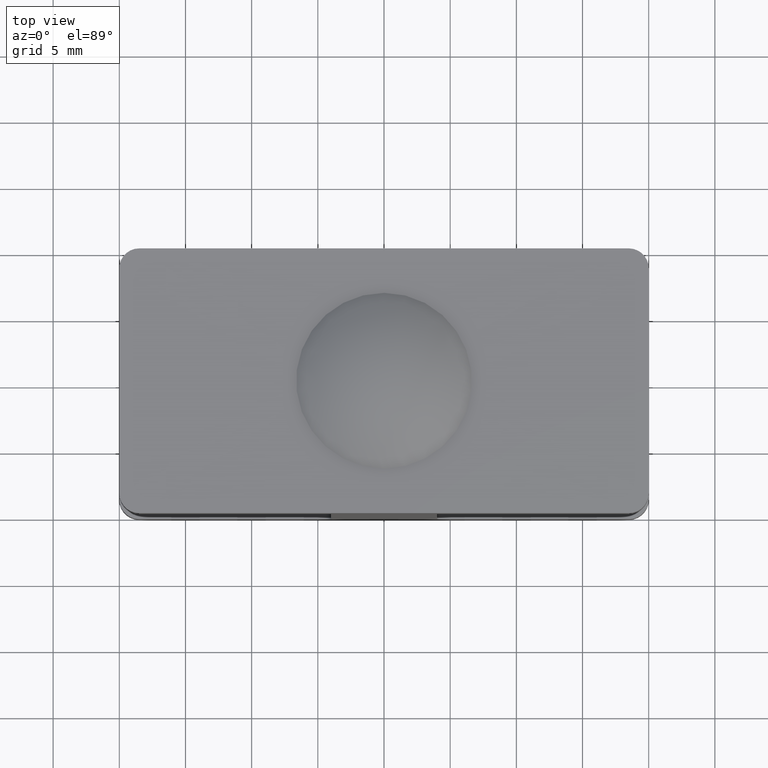
[diagram: clean part render]
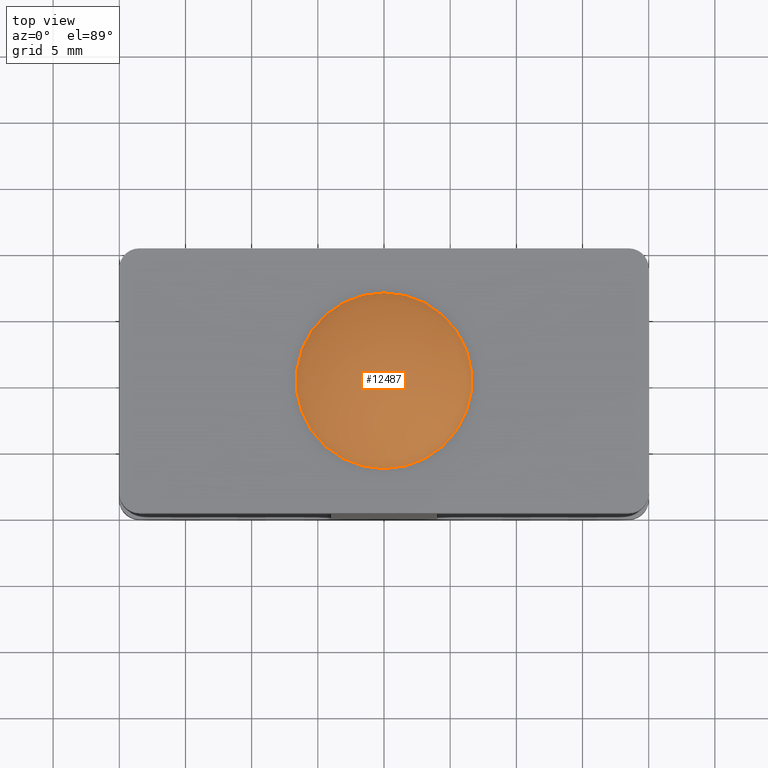
[diagram: same view with one face highlighted and labeled with its STEP entity id]
A machine part, top view. The second image highlights one B-rep face of the part: STEP entity #12487.
In plain terms, the highlighted spherical surface has radius 11.5072 mm.
Its self-contained STEP definition (entity closure, byte-faithful):
#2193 = CARTESIAN_POINT ( 'NONE',  ( 0.000000000000000000, -1.734723475976807094E-15, 0.000000000000000000 ) ) ;
#3664 = AXIS2_PLACEMENT_3D ( 'NONE', #13517, #11018, #32073 ) ;
#5016 = DIRECTION ( 'NONE',  ( -0.000000000000000000, -1.000000000000000000, -0.000000000000000000 ) ) ;
#6305 = VERTEX_POINT ( 'NONE', #11342 ) ;
#10057 = DIRECTION ( 'NONE',  ( 0.000000000000000000, 0.000000000000000000, -1.000000000000000000 ) ) ;
#11018 = DIRECTION ( 'NONE',  ( 0.000000000000000000, 0.000000000000000000, 1.000000000000000000 ) ) ;
#11342 = CARTESIAN_POINT ( 'NONE',  ( 0.000000000000000000, -1.734723475976807094E-15, -6.639999999999999680 ) ) ;
#12487 = ADVANCED_FACE ( 'NONE', ( #24041 ), #12902, .T. ) ;
#12902 = SPHERICAL_SURFACE ( 'NONE', #3664, 11.50723918780681210 ) ;
#13517 = CARTESIAN_POINT ( 'NONE',  ( 5.754763525167327271E-16, -9.398242055054595312, 0.000000000000000000 ) ) ;
#15161 = AXIS2_PLACEMENT_3D ( 'NONE', #2193, #5016, #10057 ) ;
#16379 = EDGE_LOOP ( 'NONE', ( #25177 ) ) ;
#21336 = EDGE_CURVE ( 'NONE', #6305, #6305, #34041, .T. ) ;
#24041 = FACE_OUTER_BOUND ( 'NONE', #16379, .T. ) ;
#25177 = ORIENTED_EDGE ( 'NONE', *, *, #21336, .F. ) ;
#32073 = DIRECTION ( 'NONE',  ( 1.000000000000000000, 0.000000000000000000, 0.000000000000000000 ) ) ;
#34041 = CIRCLE ( 'NONE', #15161, 6.639999999999999680 ) ;